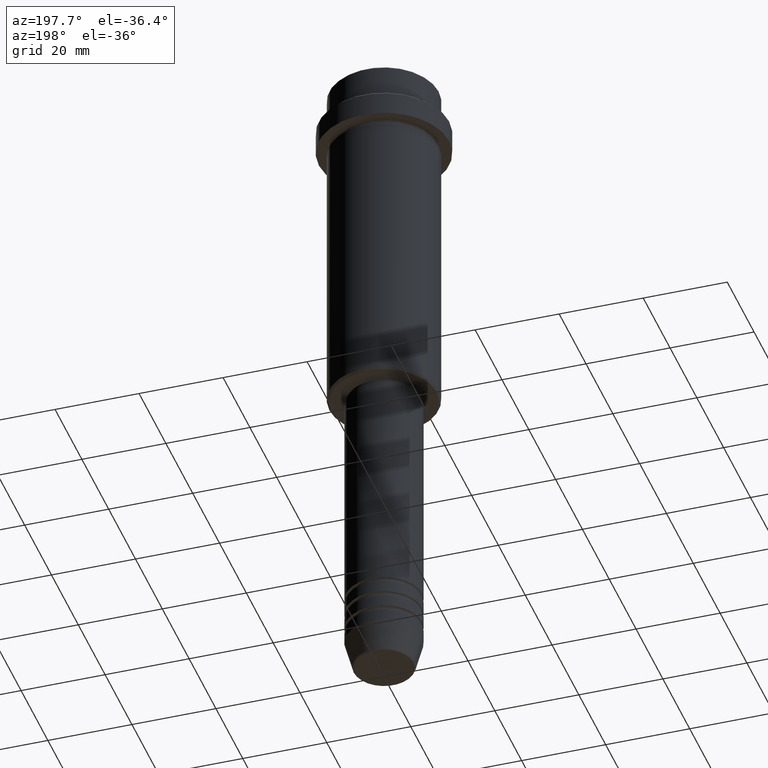
[diagram: clean part render]
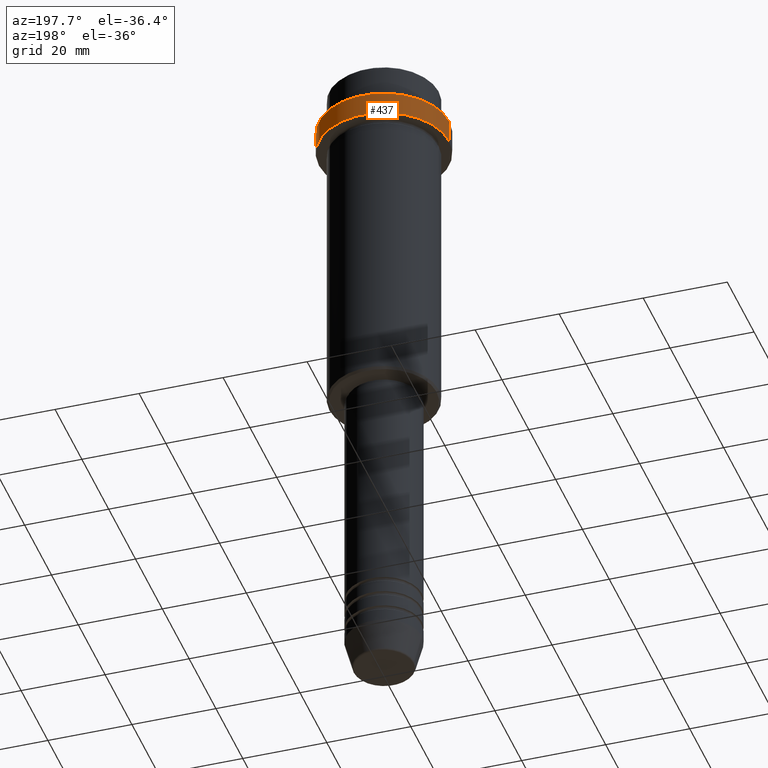
[diagram: same view with one face highlighted and labeled with its STEP entity id]
A machine part, auxiliary view. The second image highlights one B-rep face of the part: STEP entity #437.
In plain terms, the highlighted cylindrical surface (partial cylindrical patch) has radius 15.5 mm, axis along (-0, -0, 1).
Its self-contained STEP definition (entity closure, byte-faithful):
#15 = CARTESIAN_POINT ( 'NONE',  ( 15.50000000000000000, 0.000000000000000000, 0.000000000000000000 ) ) ;
#30 = VERTEX_POINT ( 'NONE', #54 ) ;
#41 = DIRECTION ( 'NONE',  ( 1.000000000000000000, 0.000000000000000000, 0.000000000000000000 ) ) ;
#49 = CIRCLE ( 'NONE', #166, 15.50000000000000000 ) ;
#54 = CARTESIAN_POINT ( 'NONE',  ( -15.50000000000000000, 1.898202538678397557E-15, -9.499999999999998224 ) ) ;
#149 = CYLINDRICAL_SURFACE ( 'NONE', #873, 15.50000000000000000 ) ;
#158 = FACE_OUTER_BOUND ( 'NONE', #463, .T. ) ;
#160 = ORIENTED_EDGE ( 'NONE', *, *, #1404, .T. ) ;
#166 = AXIS2_PLACEMENT_3D ( 'NONE', #577, #584, #335 ) ;
#204 = CARTESIAN_POINT ( 'NONE',  ( 0.000000000000000000, 0.000000000000000000, -9.499999999999998224 ) ) ;
#242 = ORIENTED_EDGE ( 'NONE', *, *, #871, .T. ) ;
#306 = CARTESIAN_POINT ( 'NONE',  ( -15.50000000000000000, 1.898202538678397557E-15, -15.00000000000000000 ) ) ;
#335 = DIRECTION ( 'NONE',  ( 1.000000000000000000, 0.000000000000000000, 0.000000000000000000 ) ) ;
#343 = EDGE_CURVE ( 'NONE', #662, #1320, #1003, .T. ) ;
#372 = CARTESIAN_POINT ( 'NONE',  ( 15.50000000000000000, 0.000000000000000000, -15.00000000000000000 ) ) ;
#437 = ADVANCED_FACE ( 'NONE', ( #158 ), #149, .T. ) ;
#463 = EDGE_LOOP ( 'NONE', ( #830, #242, #160, #1002 ) ) ;
#490 = CARTESIAN_POINT ( 'NONE',  ( 0.000000000000000000, 0.000000000000000000, 0.000000000000000000 ) ) ;
#507 = AXIS2_PLACEMENT_3D ( 'NONE', #204, #656, #977 ) ;
#577 = CARTESIAN_POINT ( 'NONE',  ( 0.000000000000000000, 0.000000000000000000, -15.00000000000000000 ) ) ;
#584 = DIRECTION ( 'NONE',  ( -0.000000000000000000, -0.000000000000000000, 1.000000000000000000 ) ) ;
#656 = DIRECTION ( 'NONE',  ( 0.000000000000000000, 0.000000000000000000, -1.000000000000000000 ) ) ;
#662 = VERTEX_POINT ( 'NONE', #372 ) ;
#729 = EDGE_CURVE ( 'NONE', #662, #1009, #49, .T. ) ;
#830 = ORIENTED_EDGE ( 'NONE', *, *, #729, .T. ) ;
#832 = CARTESIAN_POINT ( 'NONE',  ( -15.50000000000000000, 1.898202538678397557E-15, 0.000000000000000000 ) ) ;
#854 = CIRCLE ( 'NONE', #507, 15.50000000000000000 ) ;
#871 = EDGE_CURVE ( 'NONE', #1009, #30, #1254, .T. ) ;
#873 = AXIS2_PLACEMENT_3D ( 'NONE', #490, #1155, #41 ) ;
#897 = VECTOR ( 'NONE', #1275, 1000.000000000000000 ) ;
#925 = CARTESIAN_POINT ( 'NONE',  ( 15.50000000000000000, 0.000000000000000000, -9.499999999999998224 ) ) ;
#977 = DIRECTION ( 'NONE',  ( 1.000000000000000000, 0.000000000000000000, 0.000000000000000000 ) ) ;
#1002 = ORIENTED_EDGE ( 'NONE', *, *, #343, .F. ) ;
#1003 = LINE ( 'NONE', #15, #1030 ) ;
#1009 = VERTEX_POINT ( 'NONE', #306 ) ;
#1030 = VECTOR ( 'NONE', #1116, 1000.000000000000000 ) ;
#1116 = DIRECTION ( 'NONE',  ( -0.000000000000000000, -0.000000000000000000, 1.000000000000000000 ) ) ;
#1155 = DIRECTION ( 'NONE',  ( -0.000000000000000000, -0.000000000000000000, 1.000000000000000000 ) ) ;
#1254 = LINE ( 'NONE', #832, #897 ) ;
#1275 = DIRECTION ( 'NONE',  ( -0.000000000000000000, -0.000000000000000000, 1.000000000000000000 ) ) ;
#1320 = VERTEX_POINT ( 'NONE', #925 ) ;
#1404 = EDGE_CURVE ( 'NONE', #30, #1320, #854, .T. ) ;